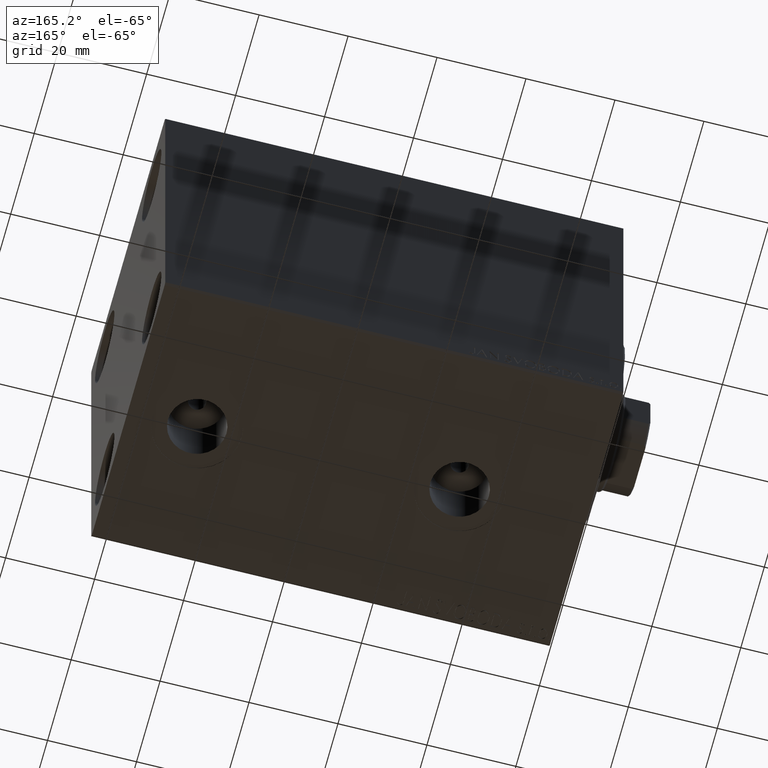
[diagram: clean part render]
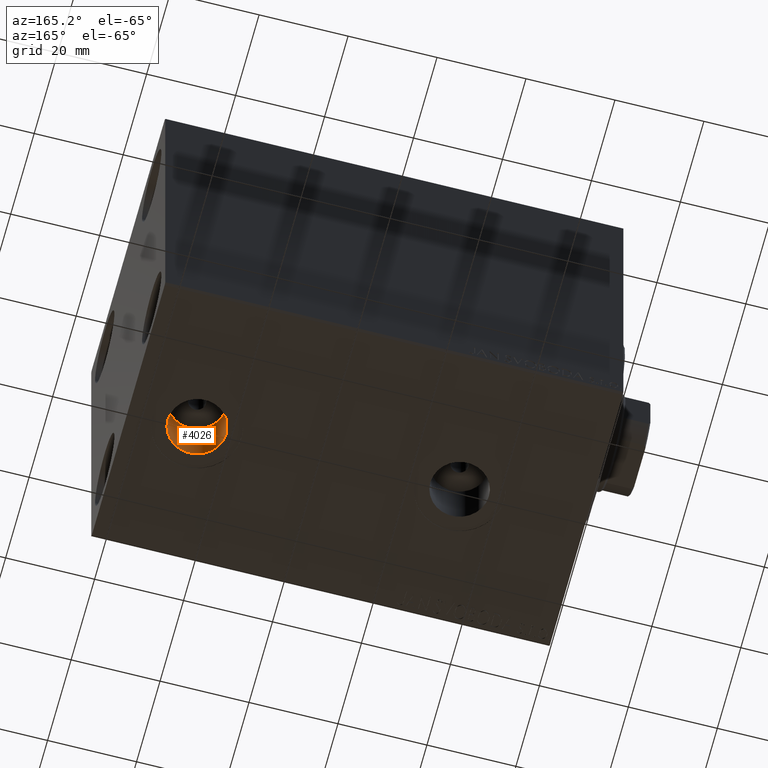
[diagram: same view with one face highlighted and labeled with its STEP entity id]
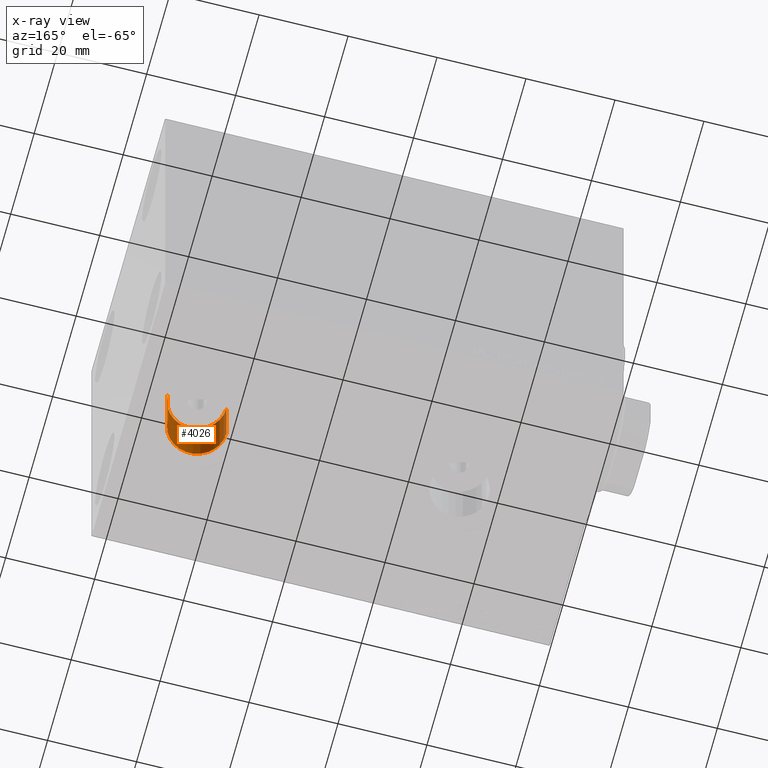
[diagram: x-ray of the same camera — body ghosted, the highlighted face saturated]
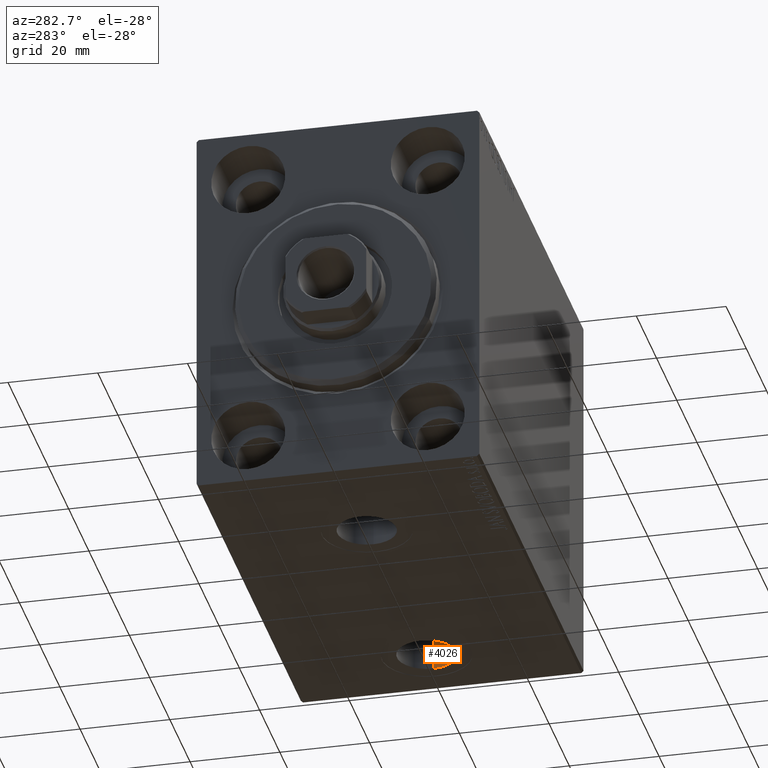
[diagram: same view with one face highlighted and labeled with its STEP entity id]
A machine part, auxiliary view. The second image highlights one B-rep face of the part: STEP entity #4026.
The next image is the same camera in x-ray: the body ghosted, the highlighted face saturated — about 0% of this face is hidden behind the body in this view.
A second angle (auxiliary view) of the same face is appended — the face is thin or edge-on in the first view.
In plain terms, the highlighted cylindrical surface (edge-blend (fillet) strip) has radius 6.58 mm, axis along (-0, -0, -1).
Its self-contained STEP definition (entity closure, byte-faithful):
#260 = CARTESIAN_POINT ( 'NONE',  ( 94.07999999999999829, -1.365640299532237457E-14, -29.50000000000000711 ) ) ;
#398 = VERTEX_POINT ( 'NONE', #33094 ) ;
#911 = EDGE_CURVE ( 'NONE', #29987, #398, #32611, .T. ) ;
#1560 = AXIS2_PLACEMENT_3D ( 'NONE', #36231, #32808, #14290 ) ;
#4026 = ADVANCED_FACE ( 'NONE', ( #39886 ), #8134, .F. ) ;
#7506 = ORIENTED_EDGE ( 'NONE', *, *, #911, .T. ) ;
#7907 = DIRECTION ( 'NONE',  ( -0.000000000000000000, -0.000000000000000000, -1.000000000000000000 ) ) ;
#8134 = CYLINDRICAL_SURFACE ( 'NONE', #13465, 6.580000000000002736 ) ;
#8670 = VECTOR ( 'NONE', #24937, 1000.000000000000000 ) ;
#13465 = AXIS2_PLACEMENT_3D ( 'NONE', #25268, #7907, #14765 ) ;
#14066 = LINE ( 'NONE', #35112, #44606 ) ;
#14290 = DIRECTION ( 'NONE',  ( -1.000000000000000000, 0.000000000000000000, 0.000000000000000000 ) ) ;
#14765 = DIRECTION ( 'NONE',  ( -1.000000000000000000, 0.000000000000000000, 0.000000000000000000 ) ) ;
#15422 = CIRCLE ( 'NONE', #1560, 6.580000000000002736 ) ;
#17169 = LINE ( 'NONE', #260, #8670 ) ;
#19252 = CARTESIAN_POINT ( 'NONE',  ( 94.07999999999999829, -1.365640299532237457E-14, -29.50000000000000711 ) ) ;
#20463 = ORIENTED_EDGE ( 'NONE', *, *, #31972, .F. ) ;
#20714 = ORIENTED_EDGE ( 'NONE', *, *, #32049, .F. ) ;
#21798 = DIRECTION ( 'NONE',  ( 0.000000000000000000, 0.000000000000000000, -1.000000000000000000 ) ) ;
#22353 = AXIS2_PLACEMENT_3D ( 'NONE', #24780, #21798, #41912 ) ;
#24255 = ORIENTED_EDGE ( 'NONE', *, *, #24713, .T. ) ;
#24713 = EDGE_CURVE ( 'NONE', #43928, #29987, #17169, .T. ) ;
#24780 = CARTESIAN_POINT ( 'NONE',  ( 87.50000000000000000, -1.446222058916133203E-14, -42.40000000000000568 ) ) ;
#24937 = DIRECTION ( 'NONE',  ( -0.000000000000000000, -0.000000000000000000, -1.000000000000000000 ) ) ;
#25268 = CARTESIAN_POINT ( 'NONE',  ( 87.50000000000000000, -1.446222058916133203E-14, -29.50000000000000711 ) ) ;
#29987 = VERTEX_POINT ( 'NONE', #31430 ) ;
#31430 = CARTESIAN_POINT ( 'NONE',  ( 94.07999999999999829, -1.365640299532237457E-14, -42.40000000000000568 ) ) ;
#31972 = EDGE_CURVE ( 'NONE', #42877, #398, #14066, .T. ) ;
#32049 = EDGE_CURVE ( 'NONE', #43928, #42877, #15422, .T. ) ;
#32611 = CIRCLE ( 'NONE', #22353, 6.580000000000002736 ) ;
#32808 = DIRECTION ( 'NONE',  ( 0.000000000000000000, 0.000000000000000000, -1.000000000000000000 ) ) ;
#32965 = CARTESIAN_POINT ( 'NONE',  ( 80.91999999999998749, -1.446222058916133203E-14, -29.50000000000000711 ) ) ;
#33094 = CARTESIAN_POINT ( 'NONE',  ( 80.91999999999998749, -1.446222058916133203E-14, -42.40000000000000568 ) ) ;
#35112 = CARTESIAN_POINT ( 'NONE',  ( 80.91999999999998749, -1.446222058916133203E-14, -29.50000000000000711 ) ) ;
#36231 = CARTESIAN_POINT ( 'NONE',  ( 87.50000000000000000, -1.446222058916133203E-14, -29.50000000000000711 ) ) ;
#39886 = FACE_OUTER_BOUND ( 'NONE', #44375, .T. ) ;
#40889 = DIRECTION ( 'NONE',  ( -0.000000000000000000, -0.000000000000000000, -1.000000000000000000 ) ) ;
#41912 = DIRECTION ( 'NONE',  ( -1.000000000000000000, 0.000000000000000000, 0.000000000000000000 ) ) ;
#42877 = VERTEX_POINT ( 'NONE', #32965 ) ;
#43928 = VERTEX_POINT ( 'NONE', #19252 ) ;
#44375 = EDGE_LOOP ( 'NONE', ( #20714, #24255, #7506, #20463 ) ) ;
#44606 = VECTOR ( 'NONE', #40889, 1000.000000000000000 ) ;